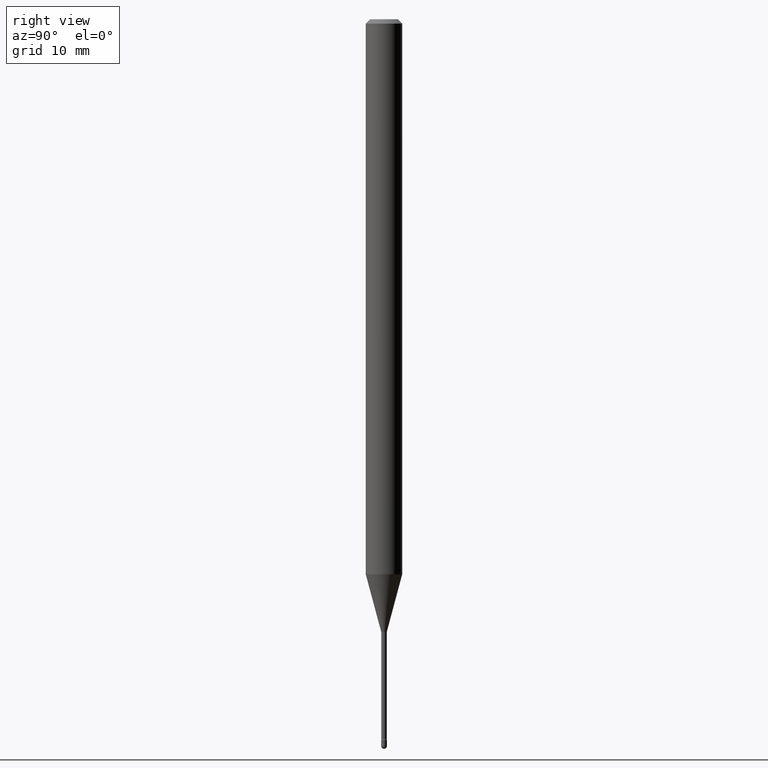
[diagram: clean part render]
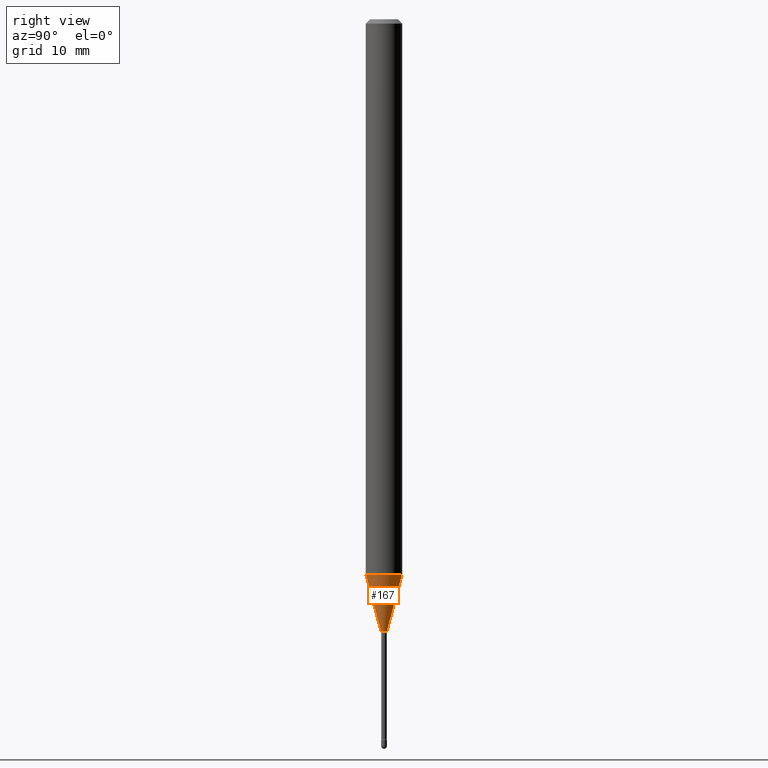
[diagram: same view with one face highlighted and labeled with its STEP entity id]
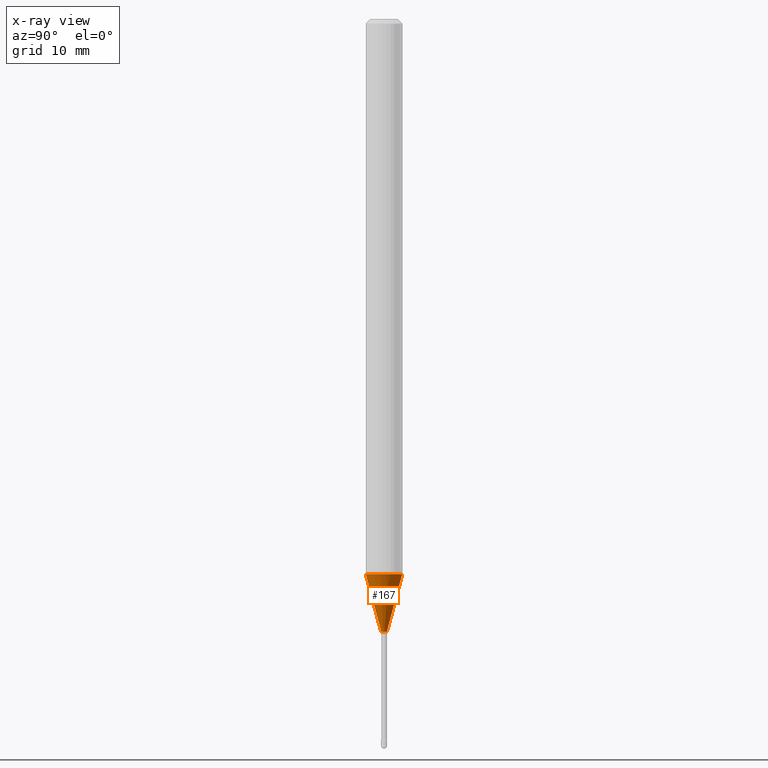
[diagram: x-ray of the same camera — body ghosted, the highlighted face saturated]
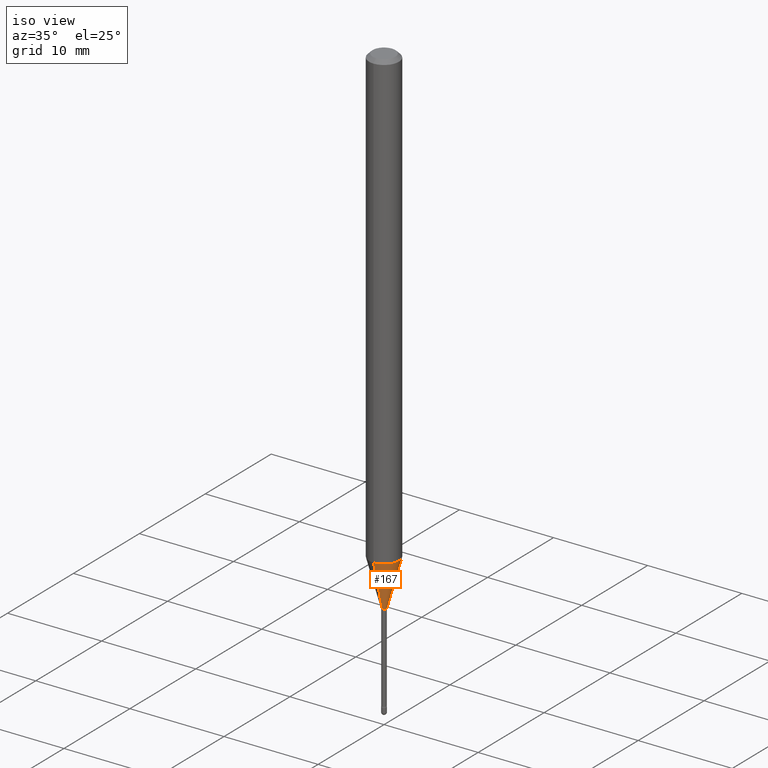
[diagram: same view with one face highlighted and labeled with its STEP entity id]
A machine part, right view. The second image highlights one B-rep face of the part: STEP entity #167.
The next image is the same camera in x-ray: the body ghosted, the highlighted face saturated — about 0% of this face is hidden behind the body in this view.
A second angle (iso view) of the same face is appended — the face is thin or edge-on in the first view.
In plain terms, the highlighted conical surface has half-angle 15 deg.
Its self-contained STEP definition (entity closure, byte-faithful):
#25 = VECTOR ( 'NONE', #265, 39.37007874015748854 ) ;
#30 = EDGE_CURVE ( 'NONE', #144, #437, #294, .T. ) ;
#31 = CARTESIAN_POINT ( 'NONE',  ( -4.364351673553451266E-16, -0.06250000000000664746, -1.901828102118092945 ) ) ;
#72 = EDGE_CURVE ( 'NONE', #437, #182, #148, .T. ) ;
#73 = CONICAL_SURFACE ( 'NONE', #261, 0.009911112605663983943, 0.2617993877991500740 ) ;
#97 = DIRECTION ( 'NONE',  ( -6.982962677686264344E-15, -1.000000000000000000, 0.000000000000000000 ) ) ;
#115 = AXIS2_PLACEMENT_3D ( 'NONE', #515, #137, #139 ) ;
#123 = DIRECTION ( 'NONE',  ( -6.982962677686264344E-15, -1.000000000000000000, 0.000000000000000000 ) ) ;
#137 = DIRECTION ( 'NONE',  ( -2.445514680004829566E-29, 3.491415644922369221E-15, 1.000000000000000000 ) ) ;
#139 = DIRECTION ( 'NONE',  ( -6.982962677686265922E-15, -1.000000000000000000, 4.370956789862821150E-15 ) ) ;
#144 = VERTEX_POINT ( 'NONE', #448 ) ;
#148 = LINE ( 'NONE', #225, #25 ) ;
#157 = CIRCLE ( 'NONE', #115, 0.06250000000000000000 ) ;
#158 = EDGE_CURVE ( 'NONE', #144, #356, #430, .T. ) ;
#161 = FACE_OUTER_BOUND ( 'NONE', #323, .T. ) ;
#167 = ADVANCED_FACE ( 'NONE', ( #161 ), #73, .T. ) ;
#182 = VERTEX_POINT ( 'NONE', #412 ) ;
#225 = CARTESIAN_POINT ( 'NONE',  ( 7.042269065260031004E-17, 0.009911112605656658206, -2.098092501787272912 ) ) ;
#258 = EDGE_CURVE ( 'NONE', #356, #182, #157, .T. ) ;
#261 = AXIS2_PLACEMENT_3D ( 'NONE', #504, #374, #123 ) ;
#263 = DIRECTION ( 'NONE',  ( -2.445514680004829566E-29, 3.491415644922369221E-15, 1.000000000000000000 ) ) ;
#265 = DIRECTION ( 'NONE',  ( 1.839019923739598738E-15, 0.2588190451025247363, 0.9659258262890673130 ) ) ;
#294 = CIRCLE ( 'NONE', #429, 0.009911112605663983943 ) ;
#298 = ORIENTED_EDGE ( 'NONE', *, *, #158, .F. ) ;
#310 = ORIENTED_EDGE ( 'NONE', *, *, #72, .T. ) ;
#323 = EDGE_LOOP ( 'NONE', ( #454, #310, #415, #298 ) ) ;
#326 = CARTESIAN_POINT ( 'NONE',  ( 2.572559502513548516E-16, 0.009911112605656658206, -2.098092501787272912 ) ) ;
#356 = VERTEX_POINT ( 'NONE', #31 ) ;
#370 = DIRECTION ( 'NONE',  ( -1.807323732225328562E-15, -0.2588190451025179639, 0.9659258262890690894 ) ) ;
#374 = DIRECTION ( 'NONE',  ( -2.445514680004829566E-29, 3.491415644922369221E-15, 1.000000000000000000 ) ) ;
#412 = CARTESIAN_POINT ( 'NONE',  ( 4.440892098501090604E-16, 0.06249999999999335948, -1.901828102118093389 ) ) ;
#415 = ORIENTED_EDGE ( 'NONE', *, *, #258, .F. ) ;
#429 = AXIS2_PLACEMENT_3D ( 'NONE', #481, #263, #97 ) ;
#430 = LINE ( 'NONE', #490, #563 ) ;
#437 = VERTEX_POINT ( 'NONE', #326 ) ;
#448 = CARTESIAN_POINT ( 'NONE',  ( -6.920892941964616469E-17, -0.009911112605671307946, -2.098092501787272912 ) ) ;
#454 = ORIENTED_EDGE ( 'NONE', *, *, #30, .T. ) ;
#481 = CARTESIAN_POINT ( 'NONE',  ( 5.130916013128835903E-29, -7.325312985234399922E-15, -2.098092501787272912 ) ) ;
#490 = CARTESIAN_POINT ( 'NONE',  ( -6.920892941964616469E-17, -0.009911112605671307946, -2.098092501787272912 ) ) ;
#504 = CARTESIAN_POINT ( 'NONE',  ( 5.130916013128835903E-29, -7.325312985234399922E-15, -2.098092501787272912 ) ) ;
#515 = CARTESIAN_POINT ( 'NONE',  ( 4.650948542575521026E-29, -6.640072389688127985E-15, -1.901828102118093167 ) ) ;
#563 = VECTOR ( 'NONE', #370, 39.37007874015748854 ) ;